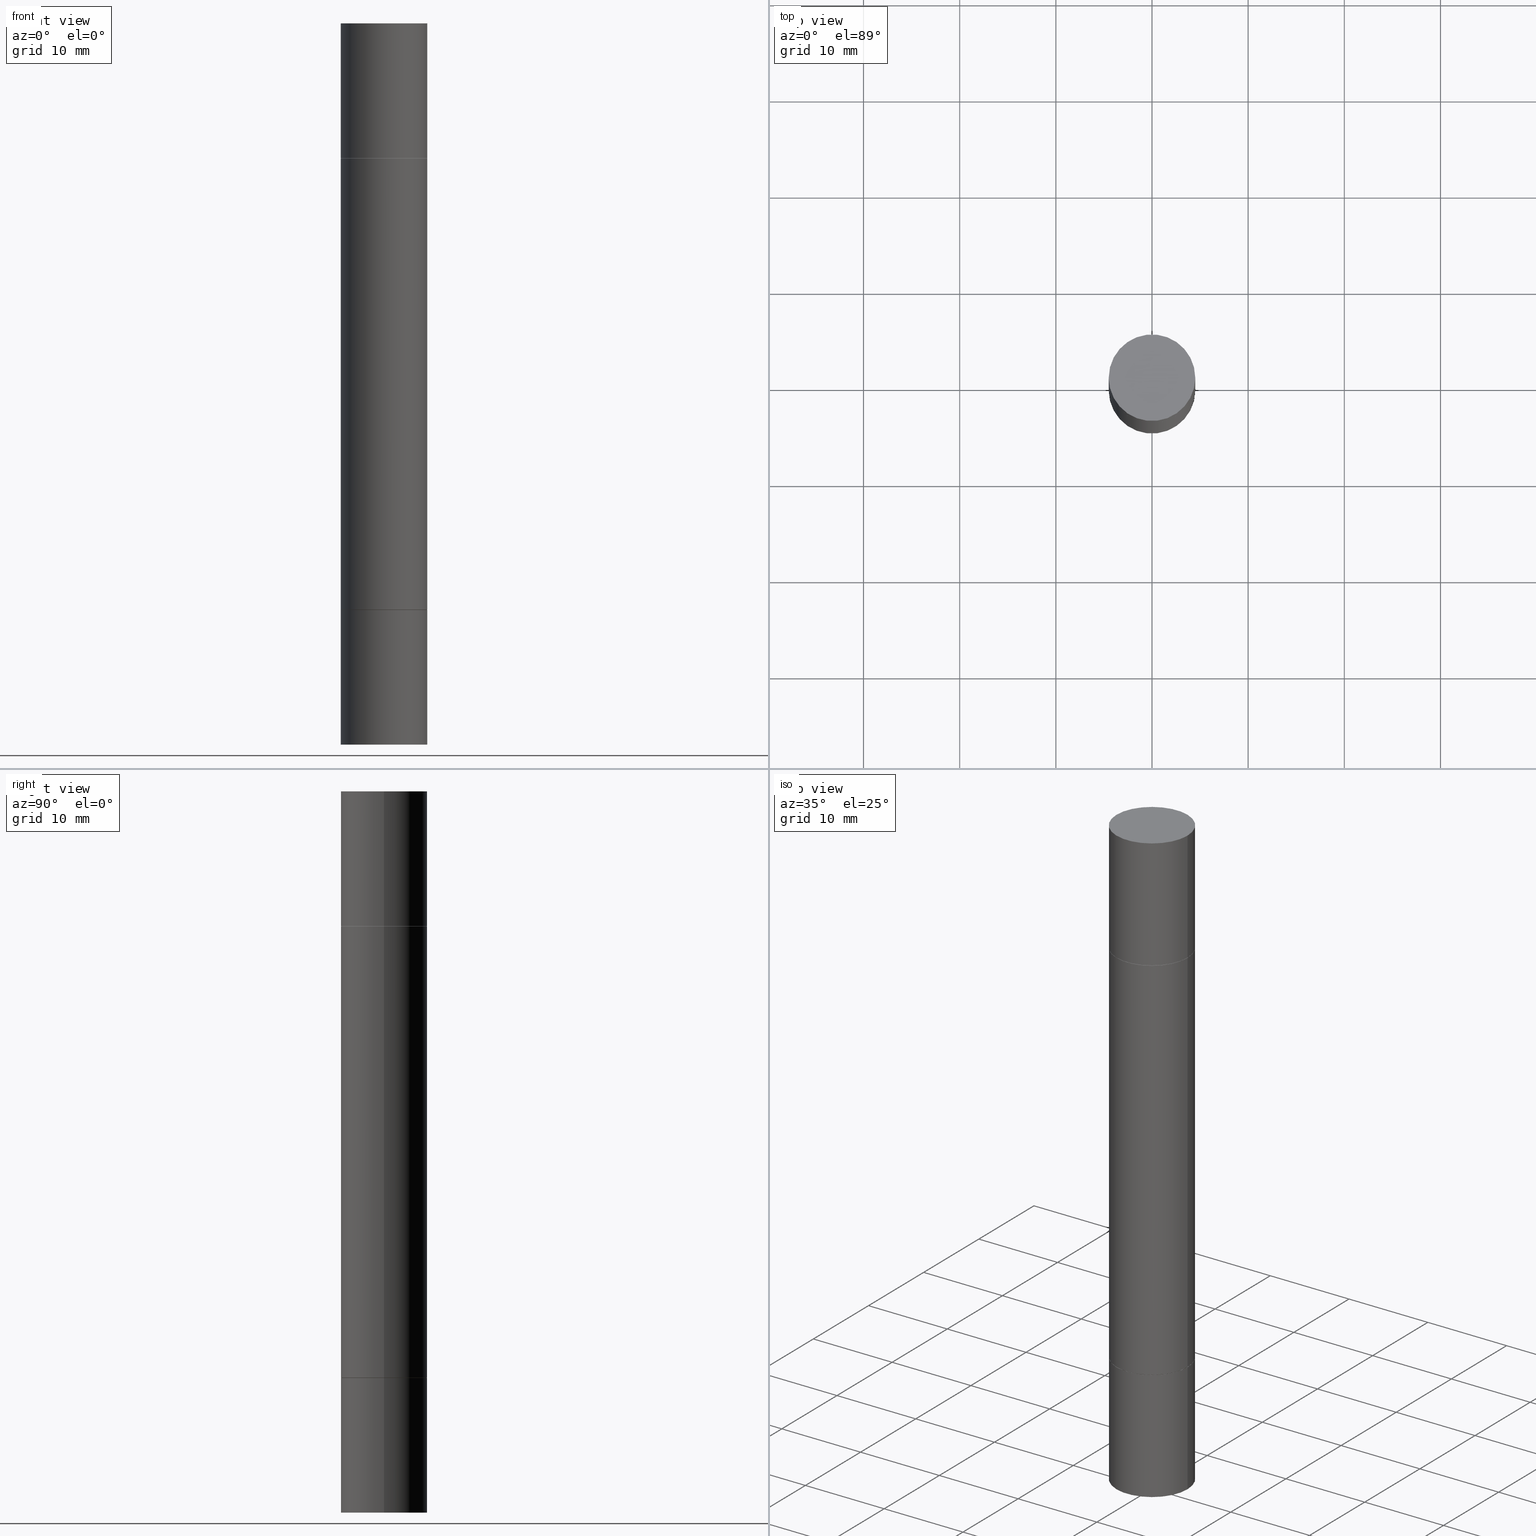
[diagram: canonical four-view strip — front | top / right | iso, engineering-drawing reading convention]
A machine part, canonical four-view strip (front | top / right | iso — engineering-drawing reading convention). The complete STEP part file that produces these views, byte-faithful:
ISO-10303-21;
HEADER;
FILE_DESCRIPTION (( 'STEP AP203' ),
    '1' );
FILE_NAME ('48917.STEP',
    '2024-03-04T15:48:31',
    ( '' ),
    ( '' ),
    'SwSTEP 2.0',
    'SolidWorks 2023',
    '' );
FILE_SCHEMA (( 'CONFIG_CONTROL_DESIGN' ));
ENDSEC;

DATA;
#1 = DIRECTION ( 'NONE',  ( 1.000000000000000000, 0.000000000000000000, 0.000000000000000000 ) ) ;
#2 = PRODUCT_DEFINITION ( 'UNKNOWN', '', #609, #599 ) ;
#3 = LINE ( 'NONE', #140, #7 ) ;
#4 = ORIENTED_EDGE ( 'NONE', *, *, #512, .F. ) ;
#5 = COORDINATED_UNIVERSAL_TIME_OFFSET ( 5, 0, .BEHIND. ) ;
#6 = CIRCLE ( 'NONE', #161, 0.1771500000000000019 ) ;
#7 = VECTOR ( 'NONE', #185, 39.37007874015748143 ) ;
#8 = CARTESIAN_POINT ( 'NONE',  ( 1.237031838352180770E-15, 0.1771499999999980590, -0.5512000000000003563 ) ) ;
#9 = EDGE_LOOP ( 'NONE', ( #348, #330, #664, #305 ) ) ;
#10 = PERSON_AND_ORGANIZATION ( #100, #189 ) ;
#11 = CARTESIAN_POINT ( 'NONE',  ( -0.1771500000000000019, -9.096389231977797770E-15, -2.952799999999998981 ) ) ;
#12 = EDGE_LOOP ( 'NONE', ( #245, #230, #581, #561 ) ) ;
#13 = CYLINDRICAL_SURFACE ( 'NONE', #530, 0.1771499999999998354 ) ;
#14 = VERTEX_POINT ( 'NONE', #23 ) ;
#15 = APPROVAL_STATUS ( 'not_yet_approved' ) ;
#16 = AXIS2_PLACEMENT_3D ( 'NONE', #539, #650, #73 ) ;
#17 = VECTOR ( 'NONE', #641, 39.37007874015748143 ) ;
#18 = DIRECTION ( 'NONE',  ( -2.445468806185136877E-29, -3.492890411551753071E-15, -1.000000000000000000 ) ) ;
#19 = VERTEX_POINT ( 'NONE', #603 ) ;
#20 = APPROVAL_DATE_TIME ( #536, #194 ) ;
#21 = LINE ( 'NONE', #657, #92 ) ;
#22 = EDGE_CURVE ( 'NONE', #220, #522, #620, .T. ) ;
#23 = CARTESIAN_POINT ( 'NONE',  ( 0.1771500000000000019, -1.154667793568816250E-14, -2.952799999999999869 ) ) ;
#24 = AXIS2_PLACEMENT_3D ( 'NONE', #397, #145, #625 ) ;
#25 = CC_DESIGN_APPROVAL ( #314, ( #2 ) ) ;
#26 = EDGE_LOOP ( 'NONE', ( #4, #266, #515, #158 ) ) ;
#27 = EDGE_CURVE ( 'NONE', #14, #55, #655, .T. ) ;
#28 = CARTESIAN_POINT ( 'NONE',  ( 0.000000000000000000, -1.031172645228302408E-14, -2.952799999999998981 ) ) ;
#29 = EDGE_CURVE ( 'NONE', #522, #220, #562, .T. ) ;
#30 = FACE_OUTER_BOUND ( 'NONE', #9, .T. ) ;
#31 = ADVANCED_FACE ( 'NONE', ( #445 ), #276, .T. ) ;
#32 = LINE ( 'NONE', #144, #251 ) ;
#33 = CARTESIAN_POINT ( 'NONE',  ( 5.870592416128037625E-29, -1.926693730311889446E-15, -0.5521999999999996911 ) ) ;
#34 = VERTEX_POINT ( 'NONE', #177 ) ;
#35 = DIRECTION ( 'NONE',  ( -2.445468806185136877E-29, -3.492890411551753071E-15, -1.000000000000000000 ) ) ;
#36 = CARTESIAN_POINT ( 'NONE',  ( 0.1761500000000000010, -3.153249715574770922E-15, -0.5511999999999992461 ) ) ;
#37 = AXIS2_PLACEMENT_3D ( 'NONE', #157, #167, #575 ) ;
#38 = VERTEX_POINT ( 'NONE', #596 ) ;
#39 = APPROVAL_PERSON_ORGANIZATION ( #246, #314, #386 ) ;
#40 = FACE_OUTER_BOUND ( 'NONE', #166, .T. ) ;
#41 = EDGE_CURVE ( 'NONE', #407, #420, #21, .T. ) ;
#42 = FACE_OUTER_BOUND ( 'NONE', #511, .T. ) ;
#43 = ORIENTED_EDGE ( 'NONE', *, *, #520, .T. ) ;
#44 = UNCERTAINTY_MEASURE_WITH_UNIT (LENGTH_MEASURE( 1.000000000000000082E-05 ), #559, 'distance_accuracy_value', 'NONE');
#45 = CARTESIAN_POINT ( 'NONE',  ( 1.237031838352180770E-15, 0.1771499999999916197, -2.401600000000000179 ) ) ;
#46 = EDGE_CURVE ( 'NONE', #370, #204, #356, .T. ) ;
#47 = CARTESIAN_POINT ( 'NONE',  ( -0.1771500000000000019, -8.088667383951849417E-15, -2.401599999999999735 ) ) ;
#48 = ORIENTED_EDGE ( 'NONE', *, *, #46, .F. ) ;
#49 = DIRECTION ( 'NONE',  ( 1.000000000000000000, -6.982962677686266711E-15, 0.000000000000000000 ) ) ;
#50 = AXIS2_PLACEMENT_3D ( 'NONE', #405, #507, #514 ) ;
#51 = ORIENTED_EDGE ( 'NONE', *, *, #512, .T. ) ;
#52 = AXIS2_PLACEMENT_3D ( 'NONE', #465, #591, #124 ) ;
#53 = DIRECTION ( 'NONE',  ( 1.000000000000000000, -6.982962677686266711E-15, 4.876176775795935793E-29 ) ) ;
#54 = DIRECTION ( 'NONE',  ( -2.445468806185136597E-29, 3.491481338843145583E-15, 1.000000000000000000 ) ) ;
#55 = VERTEX_POINT ( 'NONE', #549 ) ;
#56 = EDGE_CURVE ( 'NONE', #14, #67, #173, .T. ) ;
#57 = DIRECTION ( 'NONE',  ( -2.445468806185136877E-29, -3.492890411551753071E-15, -1.000000000000000000 ) ) ;
#58 = ORIENTED_EDGE ( 'NONE', *, *, #192, .T. ) ;
#59 = CALENDAR_DATE ( 2024, 4, 3 ) ;
#60 = FACE_OUTER_BOUND ( 'NONE', #12, .T. ) ;
#61 = ORIENTED_EDGE ( 'NONE', *, *, #232, .T. ) ;
#62 = CLOSED_SHELL ( 'NONE', ( #262, #418, #239, #218, #556, #466 ) ) ;
#63 = PERSON_AND_ORGANIZATION ( #100, #189 ) ;
#64 = AXIS2_PLACEMENT_3D ( 'NONE', #666, #186, #244 ) ;
#65 = ADVANCED_FACE ( 'NONE', ( #181 ), #493, .T. ) ;
#66 = CARTESIAN_POINT ( 'NONE',  ( 5.873037884934223228E-29, -1.923200839900336120E-15, -0.5511999999999995792 ) ) ;
#67 = VERTEX_POINT ( 'NONE', #340 ) ;
#68 = EDGE_CURVE ( 'NONE', #19, #70, #543, .T. ) ;
#69 = CARTESIAN_POINT ( 'NONE',  ( 5.873037884934223228E-29, -1.923200839900334937E-15, -0.5511999999999992461 ) ) ;
#70 = VERTEX_POINT ( 'NONE', #341 ) ;
#71 = APPROVAL_DATE_TIME ( #648, #169 ) ;
#72 = DIRECTION ( 'NONE',  ( 2.445468806185136597E-29, 3.492890411551752677E-15, 1.000000000000000000 ) ) ;
#73 = DIRECTION ( 'NONE',  ( 1.000000000000000000, -6.982962677686266711E-15, 0.000000000000000000 ) ) ;
#74 = CLOSED_SHELL ( 'NONE', ( #65, #367, #643, #608 ) ) ;
#75 = VECTOR ( 'NONE', #57, 39.37007874015748143 ) ;
#76 = DIRECTION ( 'NONE',  ( 2.445468806185136597E-29, 3.492890411551752677E-15, 1.000000000000000000 ) ) ;
#77 = ADVANCED_FACE ( 'NONE', ( #30 ), #78, .T. ) ;
#78 = CYLINDRICAL_SURFACE ( 'NONE', #440, 0.1771500000000000019 ) ;
#79 = CARTESIAN_POINT ( 'NONE',  ( 0.000000000000000000, 0.000000000000000000, 0.000000000000000000 ) ) ;
#80 = DIRECTION ( 'NONE',  ( -1.000000000000000000, 6.982962677686265922E-15, -9.839502134516470631E-33 ) ) ;
#81 = EDGE_CURVE ( 'NONE', #70, #116, #644, .T. ) ;
#82 = EDGE_CURVE ( 'NONE', #626, #522, #439, .T. ) ;
#83 = AXIS2_PLACEMENT_3D ( 'NONE', #480, #419, #160 ) ;
#84 = ADVANCED_FACE ( 'NONE', ( #284 ), #495, .T. ) ;
#85 = CARTESIAN_POINT ( 'NONE',  ( 5.870592416128037625E-29, -8.381650102026854256E-15, -2.400599999999999401 ) ) ;
#86 = CARTESIAN_POINT ( 'NONE',  ( -0.1761500000000000010, -7.130403137997704067E-16, -0.5511999999999992461 ) ) ;
#87 = DIRECTION ( 'NONE',  ( 1.000000000000000000, -6.982962677686266711E-15, 0.000000000000000000 ) ) ;
#88 = ORIENTED_EDGE ( 'NONE', *, *, #142, .F. ) ;
#89 = DIRECTION ( 'NONE',  ( 2.445468806185136597E-29, 3.492890411551752677E-15, 1.000000000000000000 ) ) ;
#90 = CARTESIAN_POINT ( 'NONE',  ( 0.000000000000000000, -1.031172645228302408E-14, -2.952799999999998981 ) ) ;
#91 = ORIENTED_EDGE ( 'NONE', *, *, #582, .T. ) ;
#92 = VECTOR ( 'NONE', #488, 39.37007874015748143 ) ;
#93 = FACE_OUTER_BOUND ( 'NONE', #455, .T. ) ;
#94 = AXIS2_PLACEMENT_3D ( 'NONE', #176, #72, #384 ) ;
#95 = ORIENTED_EDGE ( 'NONE', *, *, #282, .T. ) ;
#96 = LOCAL_TIME ( 10, 48, 31.00000000000000000, #328 ) ;
#97 = EDGE_CURVE ( 'NONE', #483, #672, #454, .T. ) ;
#98 = APPLICATION_PROTOCOL_DEFINITION ( 'international standard', 'config_control_design', 1994, #268 ) ;
#99 = DIRECTION ( 'NONE',  ( 0.000000000000000000, 1.000000000000000000, -3.492185875197449524E-15 ) ) ;
#100 = PERSON ( 'UNSPECIFIED', 'UNSPECIFIED', 'UNSPECIFIED', ('UNSPECIFIED'), ('UNSPECIFIED'), ('UNSPECIFIED') ) ;
#101 = EDGE_LOOP ( 'NONE', ( #430, #417, #248, #376 ) ) ;
#102 = DIRECTION ( 'NONE',  ( 0.7071067811864267805, -7.407546758113824138E-15, -0.7071067811866682540 ) ) ;
#103 = MANIFOLD_SOLID_BREP ( 'Mirror1[4]', #333 ) ;
#104 = LINE ( 'NONE', #447, #494 ) ;
#105 = ORIENTED_EDGE ( 'NONE', *, *, #29, .F. ) ;
#106 = FACE_OUTER_BOUND ( 'NONE', #288, .T. ) ;
#107 = LINE ( 'NONE', #11, #75 ) ;
#108 = AXIS2_PLACEMENT_3D ( 'NONE', #90, #457, #606 ) ;
#109 = ORIENTED_EDGE ( 'NONE', *, *, #660, .T. ) ;
#110 = CONICAL_SURFACE ( 'NONE', #241, 0.1761500000000000010, 0.7853981633972775267 ) ;
#111 = DIRECTION ( 'NONE',  ( 1.000000000000000000, -6.982962677686267499E-15, 0.000000000000000000 ) ) ;
#112 = ORIENTED_EDGE ( 'NONE', *, *, #555, .F. ) ;
#113 = DATE_AND_TIME ( #587, #400 ) ;
#114 = CARTESIAN_POINT ( 'NONE',  ( 0.1771500000000000019, -9.618681940378976650E-15, -2.400599999999999401 ) ) ;
#115 = EDGE_CURVE ( 'NONE', #322, #672, #398, .T. ) ;
#116 = VERTEX_POINT ( 'NONE', #350 ) ;
#117 = SECURITY_CLASSIFICATION_LEVEL ( 'unclassified' ) ;
#118 = DIRECTION ( 'NONE',  ( 1.000000000000000000, -6.982962677686266711E-15, 0.000000000000000000 ) ) ;
#119 = EDGE_LOOP ( 'NONE', ( #105, #51, #243, #207 ) ) ;
#120 = CIRCLE ( 'NONE', #578, 0.1771500000000000019 ) ;
#121 = PERSON_AND_ORGANIZATION ( #100, #189 ) ;
#122 = CIRCLE ( 'NONE', #422, 0.1761500000000000010 ) ;
#123 = LOCAL_TIME ( 10, 48, 31.00000000000000000, #324 ) ;
#124 = DIRECTION ( 'NONE',  ( 1.000000000000000000, -6.982962677686265922E-15, 9.839502134516470631E-33 ) ) ;
#125 = VERTEX_POINT ( 'NONE', #47 ) ;
#126 = DIRECTION ( 'NONE',  ( 1.000000000000000000, -6.982962677686266711E-15, 0.000000000000000000 ) ) ;
#127 = CARTESIAN_POINT ( 'NONE',  ( 0.1771500000000000019, -1.237031838352122197E-15, 8.638147158322499960E-30 ) ) ;
#128 = CALENDAR_DATE ( 2024, 4, 3 ) ;
#129 = DIRECTION ( 'NONE',  ( -2.445468806185136597E-29, 3.491481338843145583E-15, 1.000000000000000000 ) ) ;
#130 = ADVANCED_FACE ( 'NONE', ( #413 ), #668, .T. ) ;
#131 = DIRECTION ( 'NONE',  ( -2.445468806185136597E-29, -3.492890411551752677E-15, -1.000000000000000000 ) ) ;
#132 = AXIS2_PLACEMENT_3D ( 'NONE', #229, #602, #134 ) ;
#133 = VECTOR ( 'NONE', #500, 39.37007874015748143 ) ;
#134 = DIRECTION ( 'NONE',  ( 1.000000000000000000, -6.982962677686272233E-15, 0.000000000000000000 ) ) ;
#135 = CARTESIAN_POINT ( 'NONE',  ( 5.873037884934223228E-29, -1.923200839900336120E-15, -0.5511999999999995792 ) ) ;
#136 = DIRECTION ( 'NONE',  ( -2.445468806185136877E-29, -3.492890411551753071E-15, -1.000000000000000000 ) ) ;
#137 = DIRECTION ( 'NONE',  ( 1.000000000000000000, -6.982962677686272233E-15, 0.000000000000000000 ) ) ;
#138 = CIRCLE ( 'NONE', #64, 0.1771500000000000019 ) ;
#139 = DIRECTION ( 'NONE',  ( -2.445468806185136877E-29, -3.492890411551753071E-15, -1.000000000000000000 ) ) ;
#140 = CARTESIAN_POINT ( 'NONE',  ( 0.1761500000000000010, -3.153249715574770922E-15, -0.5511999999999992461 ) ) ;
#141 = CYLINDRICAL_SURFACE ( 'NONE', #563, 0.1771499999999998354 ) ;
#142 = EDGE_CURVE ( 'NONE', #672, #322, #6, .T. ) ;
#143 = VERTEX_POINT ( 'NONE', #294 ) ;
#144 = CARTESIAN_POINT ( 'NONE',  ( -0.1771499999999998354, -9.096389231977799348E-15, -2.952799999999998981 ) ) ;
#145 = DIRECTION ( 'NONE',  ( -2.445468806185136597E-29, -3.492890411551752677E-15, -1.000000000000000000 ) ) ;
#146 = CC_DESIGN_PERSON_AND_ORGANIZATION_ASSIGNMENT ( #121, #221, ( #609 ) ) ;
#147 = EDGE_LOOP ( 'NONE', ( #43, #61 ) ) ;
#148 = CIRCLE ( 'NONE', #550, 0.1771500000000000019 ) ;
#149 = DIRECTION ( 'NONE',  ( 2.445468806185136597E-29, 3.492890411551752677E-15, 1.000000000000000000 ) ) ;
#150 = ORIENTED_EDGE ( 'NONE', *, *, #41, .F. ) ;
#151 = CARTESIAN_POINT ( 'NONE',  ( 5.873037884934223228E-29, -8.385141583365697263E-15, -2.401599999999999735 ) ) ;
#152 = DIRECTION ( 'NONE',  ( 2.445468806185136597E-29, 3.492890411551752677E-15, 1.000000000000000000 ) ) ;
#153 = EDGE_CURVE ( 'NONE', #220, #354, #460, .T. ) ;
#154 = EDGE_LOOP ( 'NONE', ( #499, #199, #109, #629 ) ) ;
#155 = CARTESIAN_POINT ( 'NONE',  ( -0.1761500000000000010, -7.128222099976058179E-15, -2.401599999999999735 ) ) ;
#156 = ADVANCED_FACE ( 'NONE', ( #571 ), #634, .T. ) ;
#157 = CARTESIAN_POINT ( 'NONE',  ( 1.237031838352194377E-15, 0.1771499999999897046, -2.952800000000000313 ) ) ;
#158 = ORIENTED_EDGE ( 'NONE', *, *, #619, .F. ) ;
#159 = DIRECTION ( 'NONE',  ( 1.000000000000000000, -6.982962677686267499E-15, 0.000000000000000000 ) ) ;
#160 = DIRECTION ( 'NONE',  ( -1.000000000000000000, 6.982962677686265922E-15, -9.839502134516470631E-33 ) ) ;
#161 = AXIS2_PLACEMENT_3D ( 'NONE', #33, #615, #49 ) ;
#162 = ORIENTED_EDGE ( 'NONE', *, *, #232, .F. ) ;
#163 = CONICAL_SURFACE ( 'NONE', #380, 0.1761500000000000010, 0.7853981633972775267 ) ;
#164 = CARTESIAN_POINT ( 'NONE',  ( -0.1761500000000000010, -7.130403137997704067E-16, -0.5511999999999992461 ) ) ;
#165 = DIRECTION ( 'NONE',  ( 2.438088387897959769E-29, 3.492890411551753071E-15, 1.000000000000000000 ) ) ;
#166 = EDGE_LOOP ( 'NONE', ( #270, #535, #364, #474 ) ) ;
#167 = DIRECTION ( 'NONE',  ( 2.438088387897960049E-29, -3.491481338843145188E-15, -1.000000000000000000 ) ) ;
#168 = EDGE_LOOP ( 'NONE', ( #461, #506, #58, #621 ) ) ;
#169 = APPROVAL ( #15, 'UNSPECIFIED' ) ;
#170 = APPROVAL_DATE_TIME ( #113, #314 ) ;
#171 = DIRECTION ( 'NONE',  ( 1.000000000000000000, -6.982962677686268288E-15, 0.000000000000000000 ) ) ;
#172 = ORIENTED_EDGE ( 'NONE', *, *, #27, .F. ) ;
#173 = CIRCLE ( 'NONE', #132, 0.1771500000000000019 ) ;
#174 = PERSON_AND_ORGANIZATION ( #100, #189 ) ;
#175 = CIRCLE ( 'NONE', #496, 0.1761500000000000010 ) ;
#176 = CARTESIAN_POINT ( 'NONE',  ( 5.873037884934223228E-29, -1.923200839900336120E-15, -0.5511999999999995792 ) ) ;
#177 = CARTESIAN_POINT ( 'NONE',  ( 0.1761500000000000010, -3.153249715574770922E-15, -0.5511999999999992461 ) ) ;
#178 = EDGE_CURVE ( 'NONE', #420, #38, #120, .T. ) ;
#179 = CARTESIAN_POINT ( 'NONE',  ( 7.220980290903470182E-29, 2.080354946989631982E-18, 5.463695987328526437E-16 ) ) ;
#180 = DIRECTION ( 'NONE',  ( 1.000000000000000000, -6.982962677686272233E-15, 0.000000000000000000 ) ) ;
#181 = FACE_OUTER_BOUND ( 'NONE', #361, .T. ) ;
#182 = AXIS2_PLACEMENT_3D ( 'NONE', #8, #165, #375 ) ;
#183 = DIRECTION ( 'NONE',  ( 1.000000000000000000, -6.982962677686266711E-15, 0.000000000000000000 ) ) ;
#184 = DIRECTION ( 'NONE',  ( -2.445468806185136877E-29, 3.491481338843145188E-15, 1.000000000000000000 ) ) ;
#185 = DIRECTION ( 'NONE',  ( 0.7071067811864267805, -7.407546758113824138E-15, -0.7071067811866682540 ) ) ;
#186 = DIRECTION ( 'NONE',  ( 2.445468806185136597E-29, 3.492890411551752677E-15, 1.000000000000000000 ) ) ;
#187 = CARTESIAN_POINT ( 'NONE',  ( 7.220980290903470182E-29, 2.080354946989631982E-18, 5.463695987328526437E-16 ) ) ;
#188 = CIRCLE ( 'NONE', #214, 0.1771500000000000019 ) ;
#189 = ORGANIZATION ( 'UNSPECIFIED', 'UNSPECIFIED', '' ) ;
#190 = DIRECTION ( 'NONE',  ( 2.438088387897959769E-29, 3.492890411551753071E-15, 1.000000000000000000 ) ) ;
#191 = VERTEX_POINT ( 'NONE', #36 ) ;
#192 = EDGE_CURVE ( 'NONE', #404, #116, #104, .T. ) ;
#193 = DIRECTION ( 'NONE',  ( 1.000000000000000000, -6.982962677686267499E-15, 0.000000000000000000 ) ) ;
#194 = APPROVAL ( #434, 'UNSPECIFIED' ) ;
#195 = CARTESIAN_POINT ( 'NONE',  ( -0.1761500000000000010, -7.147241175928796487E-16, -0.5511999999999992461 ) ) ;
#196 = ORIENTED_EDGE ( 'NONE', *, *, #68, .T. ) ;
#197 =( NAMED_UNIT ( * ) SI_UNIT ( $, .STERADIAN. ) SOLID_ANGLE_UNIT ( ) );
#198 = FACE_OUTER_BOUND ( 'NONE', #385, .T. ) ;
#199 = ORIENTED_EDGE ( 'NONE', *, *, #501, .F. ) ;
#200 = CARTESIAN_POINT ( 'NONE',  ( 3.610490145451734531E-29, -5.154823048668018475E-15, -1.476399999999999491 ) ) ;
#201 = CIRCLE ( 'NONE', #588, 0.1771500000000000019 ) ;
#202 = CONICAL_SURFACE ( 'NONE', #323, 0.1761500000000000010, 0.7853981633972775267 ) ;
#203 = DIRECTION ( 'NONE',  ( 1.000000000000000000, -6.982962677686266711E-15, 0.000000000000000000 ) ) ;
#204 = VERTEX_POINT ( 'NONE', #567 ) ;
#205 = CARTESIAN_POINT ( 'NONE',  ( 5.873037884934223228E-29, -8.385141583365697263E-15, -2.401599999999999735 ) ) ;
#206 = FACE_OUTER_BOUND ( 'NONE', #568, .T. ) ;
#207 = ORIENTED_EDGE ( 'NONE', *, *, #153, .F. ) ;
#208 = CARTESIAN_POINT ( 'NONE',  ( -0.1771500000000000019, -7.113565100066610661E-16, -0.5521999999999996911 ) ) ;
#209 = DIRECTION ( 'NONE',  ( -2.445468806185136597E-29, -3.492890411551752677E-15, -1.000000000000000000 ) ) ;
#210 = ORIENTED_EDGE ( 'NONE', *, *, #115, .F. ) ;
#211 =( LENGTH_UNIT ( ) NAMED_UNIT ( * ) SI_UNIT ( $, .METRE. ) );
#212 = CARTESIAN_POINT ( 'NONE',  ( 5.873037884934223228E-29, -1.923200839900334937E-15, -0.5511999999999992461 ) ) ;
#213 = ORIENTED_EDGE ( 'NONE', *, *, #272, .T. ) ;
#214 = AXIS2_PLACEMENT_3D ( 'NONE', #187, #554, #658 ) ;
#215 = EDGE_CURVE ( 'NONE', #125, #55, #201, .T. ) ;
#216 = DATE_AND_TIME ( #484, #279 ) ;
#217 = ADVANCED_FACE ( 'NONE', ( #93 ), #299, .F. ) ;
#218 = ADVANCED_FACE ( 'NONE', ( #42 ), #557, .F. ) ;
#219 = LINE ( 'NONE', #580, #663 ) ;
#220 = VERTEX_POINT ( 'NONE', #242 ) ;
#221 = PERSON_AND_ORGANIZATION_ROLE ( 'creator' ) ;
#222 = DIRECTION ( 'NONE',  ( 1.000000000000000000, -6.982962677686268288E-15, 0.000000000000000000 ) ) ;
#223 = EDGE_LOOP ( 'NONE', ( #414, #91, #254, #640 ) ) ;
#224 = DATE_TIME_ROLE ( 'creation_date' ) ;
#225 = DIRECTION ( 'NONE',  ( 0.7071067811864267805, -2.468850131080992517E-15, 0.7071067811866682540 ) ) ;
#226 = EDGE_LOOP ( 'NONE', ( #327, #669 ) ) ;
#227 = CARTESIAN_POINT ( 'NONE',  ( 7.220980290903470182E-29, -1.030964609733603853E-14, -2.952799999999999869 ) ) ;
#228 = EDGE_LOOP ( 'NONE', ( #478, #196, #572, #233 ) ) ;
#229 = CARTESIAN_POINT ( 'NONE',  ( 7.220980290903470182E-29, -1.030964609733603853E-14, -2.952799999999999869 ) ) ;
#230 = ORIENTED_EDGE ( 'NONE', *, *, #82, .T. ) ;
#231 =( GEOMETRIC_REPRESENTATION_CONTEXT ( 3 ) GLOBAL_UNCERTAINTY_ASSIGNED_CONTEXT ( ( #44 ) ) GLOBAL_UNIT_ASSIGNED_CONTEXT ( ( #559, #627, #197 ) ) REPRESENTATION_CONTEXT ( 'NONE', 'WORKASPACE' ) );
#232 = EDGE_CURVE ( 'NONE', #616, #407, #138, .T. ) ;
#233 = ORIENTED_EDGE ( 'NONE', *, *, #192, .F. ) ;
#234 = CARTESIAN_POINT ( 'NONE',  ( -0.1771500000000000019, 1.258726456399017493E-15, -8.713893512386565325E-30 ) ) ;
#235 = EDGE_LOOP ( 'NONE', ( #313, #95 ) ) ;
#236 = DIRECTION ( 'NONE',  ( 2.438088387897959769E-29, 3.492890411551753071E-15, 1.000000000000000000 ) ) ;
#237 = CARTESIAN_POINT ( 'NONE',  ( 0.000000000000000000, 0.000000000000000000, -1.476399999999999491 ) ) ;
#238 = ORIENTED_EDGE ( 'NONE', *, *, #501, .T. ) ;
#239 = ADVANCED_FACE ( 'NONE', ( #198 ), #290, .F. ) ;
#240 = CARTESIAN_POINT ( 'NONE',  ( 1.237031838352194377E-15, 0.1771500000000000019, 0.000000000000000000 ) ) ;
#241 = AXIS2_PLACEMENT_3D ( 'NONE', #69, #349, #646 ) ;
#242 = CARTESIAN_POINT ( 'NONE',  ( 0.1771500000000000019, -3.163725568664010262E-15, -0.5521999999999996911 ) ) ;
#243 = ORIENTED_EDGE ( 'NONE', *, *, #485, .F. ) ;
#244 = DIRECTION ( 'NONE',  ( 1.000000000000000000, -6.982962677686266711E-15, 0.000000000000000000 ) ) ;
#245 = ORIENTED_EDGE ( 'NONE', *, *, #546, .F. ) ;
#246 = PERSON_AND_ORGANIZATION ( #100, #189 ) ;
#247 = CARTESIAN_POINT ( 'NONE',  ( 1.237031838352194377E-15, 0.1771500000000000019, 0.000000000000000000 ) ) ;
#248 = ORIENTED_EDGE ( 'NONE', *, *, #142, .T. ) ;
#249 = DIRECTION ( 'NONE',  ( -2.445468806185136597E-29, 3.491481338843145583E-15, 1.000000000000000000 ) ) ;
#250 = CLOSED_SHELL ( 'NONE', ( #31, #538, #429, #130 ) ) ;
#251 = VECTOR ( 'NONE', #18, 39.37007874015748143 ) ;
#252 = FACE_OUTER_BOUND ( 'NONE', #676, .T. ) ;
#253 = AXIS2_PLACEMENT_3D ( 'NONE', #205, #303, #573 ) ;
#254 = ORIENTED_EDGE ( 'NONE', *, *, #27, .T. ) ;
#255 = FACE_OUTER_BOUND ( 'NONE', #481, .T. ) ;
#256 = CARTESIAN_POINT ( 'NONE',  ( 5.873037884934223228E-29, -8.385141583365697263E-15, -2.401599999999999735 ) ) ;
#257 = ORIENTED_EDGE ( 'NONE', *, *, #468, .F. ) ;
#258 = ADVANCED_FACE ( 'NONE', ( #301 ), #450, .T. ) ;
#259 = DIRECTION ( 'NONE',  ( 1.000000000000000000, -6.982962677686266711E-15, 0.000000000000000000 ) ) ;
#260 = ORIENTED_EDGE ( 'NONE', *, *, #558, .F. ) ;
#261 = APPROVAL_STATUS ( 'not_yet_approved' ) ;
#262 = ADVANCED_FACE ( 'NONE', ( #612 ), #141, .T. ) ;
#263 = FACE_OUTER_BOUND ( 'NONE', #226, .T. ) ;
#264 = VECTOR ( 'NONE', #505, 39.37007874015748143 ) ;
#265 = VECTOR ( 'NONE', #136, 39.37007874015748143 ) ;
#266 = ORIENTED_EDGE ( 'NONE', *, *, #22, .F. ) ;
#267 = CIRCLE ( 'NONE', #442, 0.1771500000000000019 ) ;
#268 = APPLICATION_CONTEXT ( 'configuration controlled 3d designs of mechanical parts and assemblies' ) ;
#269 = CYLINDRICAL_SURFACE ( 'NONE', #673, 0.1771499999999998354 ) ;
#270 = ORIENTED_EDGE ( 'NONE', *, *, #97, .F. ) ;
#271 = PERSON_AND_ORGANIZATION ( #100, #189 ) ;
#272 = EDGE_CURVE ( 'NONE', #616, #38, #107, .T. ) ;
#273 = CARTESIAN_POINT ( 'NONE',  ( 0.1761500000000000010, -9.615190459040133643E-15, -2.401599999999999735 ) ) ;
#274 = ORIENTED_EDGE ( 'NONE', *, *, #513, .T. ) ;
#275 = DIRECTION ( 'NONE',  ( -2.445468806185136597E-29, -3.492890411551752677E-15, -1.000000000000000000 ) ) ;
#276 = CYLINDRICAL_SURFACE ( 'NONE', #342, 0.1771500000000000019 ) ;
#277 = AXIS2_PLACEMENT_3D ( 'NONE', #347, #360, #659 ) ;
#278 = AXIS2_PLACEMENT_3D ( 'NONE', #540, #275, #486 ) ;
#279 = LOCAL_TIME ( 10, 48, 31.00000000000000000, #479 ) ;
#280 = CARTESIAN_POINT ( 'NONE',  ( 5.870592416128037625E-29, -1.926693730311889446E-15, -0.5521999999999996911 ) ) ;
#281 = DIRECTION ( 'NONE',  ( -2.445468806185136597E-29, -3.492890411551752677E-15, -1.000000000000000000 ) ) ;
#282 = EDGE_CURVE ( 'NONE', #483, #191, #122, .T. ) ;
#283 = ADVANCED_FACE ( 'NONE', ( #252 ), #269, .T. ) ;
#284 = FACE_OUTER_BOUND ( 'NONE', #526, .T. ) ;
#285 = VECTOR ( 'NONE', #671, 39.37007874015748143 ) ;
#286 = AXIS2_PLACEMENT_3D ( 'NONE', #247, #190, #401 ) ;
#287 = DIRECTION ( 'NONE',  ( 1.000000000000000000, -6.982962677686267499E-15, 0.000000000000000000 ) ) ;
#288 = EDGE_LOOP ( 'NONE', ( #592, #427 ) ) ;
#289 = LINE ( 'NONE', #234, #133 ) ;
#290 = PLANE ( 'NONE',  #410 ) ;
#291 = EDGE_CURVE ( 'NONE', #672, #204, #428, .T. ) ;
#292 = ORIENTED_EDGE ( 'NONE', *, *, #528, .T. ) ;
#293 = DIRECTION ( 'NONE',  ( 2.445468806185136597E-29, 3.492890411551752677E-15, 1.000000000000000000 ) ) ;
#294 = CARTESIAN_POINT ( 'NONE',  ( 0.1761500000000000010, -9.615190459040133643E-15, -2.401599999999999735 ) ) ;
#295 = ORIENTED_EDGE ( 'NONE', *, *, #468, .T. ) ;
#296 = FACE_OUTER_BOUND ( 'NONE', #632, .T. ) ;
#297 = AXIS2_PLACEMENT_3D ( 'NONE', #510, #502, #403 ) ;
#298 = CIRCLE ( 'NONE', #368, 0.1771500000000000019 ) ;
#299 = PLANE ( 'NONE',  #50 ) ;
#300 = PERSON_AND_ORGANIZATION_ROLE ( 'design_owner' ) ;
#301 = FACE_OUTER_BOUND ( 'NONE', #147, .T. ) ;
#302 = ORIENTED_EDGE ( 'NONE', *, *, #56, .F. ) ;
#303 = DIRECTION ( 'NONE',  ( -2.445468806185136597E-29, 3.491481338843145583E-15, 1.000000000000000000 ) ) ;
#304 = CARTESIAN_POINT ( 'NONE',  ( 5.873037884934223228E-29, -1.923200839900336120E-15, -0.5511999999999995792 ) ) ;
#305 = ORIENTED_EDGE ( 'NONE', *, *, #178, .T. ) ;
#306 = AXIS2_PLACEMENT_3D ( 'NONE', #329, #129, #287 ) ;
#307 = FACE_OUTER_BOUND ( 'NONE', #586, .T. ) ;
#308 = CONICAL_SURFACE ( 'NONE', #443, 0.1761500000000000010, 0.7853981633972775267 ) ;
#309 = ORIENTED_EDGE ( 'NONE', *, *, #291, .F. ) ;
#310 = CARTESIAN_POINT ( 'NONE',  ( 5.873037884934223228E-29, -1.923200839900334937E-15, -0.5511999999999992461 ) ) ;
#311 = PLANE ( 'NONE',  #182 ) ;
#312 = EDGE_CURVE ( 'NONE', #404, #19, #267, .T. ) ;
#313 = ORIENTED_EDGE ( 'NONE', *, *, #438, .T. ) ;
#314 = APPROVAL ( #261, 'UNSPECIFIED' ) ;
#315 = APPROVAL_ROLE ( '' ) ;
#316 = CARTESIAN_POINT ( 'NONE',  ( 0.1771500000000000019, -1.234951483405132701E-15, 5.463695987328526437E-16 ) ) ;
#317 = ORIENTED_EDGE ( 'NONE', *, *, #569, .T. ) ;
#318 = CARTESIAN_POINT ( 'NONE',  ( 5.873037884934223228E-29, -1.923200839900334937E-15, -0.5511999999999992461 ) ) ;
#319 = AXIS2_PLACEMENT_3D ( 'NONE', #85, #337, #183 ) ;
#320 = CIRCLE ( 'NONE', #94, 0.1771500000000000019 ) ;
#321 = MANIFOLD_SOLID_BREP ( 'Mirror1[3]', #250 ) ;
#322 = VERTEX_POINT ( 'NONE', #416 ) ;
#323 = AXIS2_PLACEMENT_3D ( 'NONE', #462, #577, #469 ) ;
#324 = COORDINATED_UNIVERSAL_TIME_OFFSET ( 5, 0, .BEHIND. ) ;
#325 = EDGE_CURVE ( 'NONE', #637, #204, #219, .T. ) ;
#326 = CARTESIAN_POINT ( 'NONE',  ( 0.000000000000000000, -1.031172645228302408E-14, -2.952799999999998981 ) ) ;
#327 = ORIENTED_EDGE ( 'NONE', *, *, #437, .F. ) ;
#328 = COORDINATED_UNIVERSAL_TIME_OFFSET ( 5, 0, .BEHIND. ) ;
#329 = CARTESIAN_POINT ( 'NONE',  ( 5.873037884934223228E-29, -8.385141583365697263E-15, -2.401599999999999735 ) ) ;
#330 = ORIENTED_EDGE ( 'NONE', *, *, #520, .F. ) ;
#331 = LINE ( 'NONE', #273, #600 ) ;
#332 = ORIENTED_EDGE ( 'NONE', *, *, #291, .T. ) ;
#333 = CLOSED_SHELL ( 'NONE', ( #574, #258, #377, #77 ) ) ;
#334 = CIRCLE ( 'NONE', #590, 0.1771499999999998354 ) ;
#335 = MANIFOLD_SOLID_BREP ( 'Mirror1[1]', #62 ) ;
#336 = ADVANCED_FACE ( 'NONE', ( #426 ), #423, .F. ) ;
#337 = DIRECTION ( 'NONE',  ( -2.445468806185136597E-29, 3.491481338843145583E-15, 1.000000000000000000 ) ) ;
#338 = CC_DESIGN_DATE_AND_TIME_ASSIGNMENT ( #216, #425, ( #345 ) ) ;
#339 = MANIFOLD_SOLID_BREP ( 'Body-Move/Copy2[1]', #74 ) ;
#340 = CARTESIAN_POINT ( 'NONE',  ( -0.1771500000000000019, -8.088667383951849417E-15, -2.952799999999999869 ) ) ;
#341 = CARTESIAN_POINT ( 'NONE',  ( -0.1771500000000000019, 2.547769778285537851E-16, -0.5511999999999995792 ) ) ;
#342 = AXIS2_PLACEMENT_3D ( 'NONE', #390, #131, #601 ) ;
#343 = CIRCLE ( 'NONE', #392, 0.1771500000000000019 ) ;
#344 = FACE_OUTER_BOUND ( 'NONE', #223, .T. ) ;
#345 = SECURITY_CLASSIFICATION ( '', '', #117 ) ;
#346 = PRODUCT_RELATED_PRODUCT_CATEGORY ( 'detail', '', ( #358 ) ) ;
#347 = CARTESIAN_POINT ( 'NONE',  ( 5.873037884934223228E-29, -1.923200839900334937E-15, -0.5511999999999992461 ) ) ;
#348 = ORIENTED_EDGE ( 'NONE', *, *, #272, .F. ) ;
#349 = DIRECTION ( 'NONE',  ( -2.445468806185136597E-29, -3.492890411551752677E-15, -1.000000000000000000 ) ) ;
#350 = CARTESIAN_POINT ( 'NONE',  ( 0.1771500000000000019, -3.160232678252458120E-15, -0.5511999999999995792 ) ) ;
#351 = EDGE_LOOP ( 'NONE', ( #162, #213, #317, #150 ) ) ;
#352 = DIRECTION ( 'NONE',  ( 2.445468806185136597E-29, 3.492890411551752677E-15, 1.000000000000000000 ) ) ;
#353 = DIRECTION ( 'NONE',  ( 1.000000000000000000, -6.982962677686266711E-15, 0.000000000000000000 ) ) ;
#354 = VERTEX_POINT ( 'NONE', #639 ) ;
#355 = DIRECTION ( 'NONE',  ( 1.000000000000000000, -6.982962677686266711E-15, 0.000000000000000000 ) ) ;
#356 = CIRCLE ( 'NONE', #319, 0.1771500000000000019 ) ;
#357 = AXIS2_PLACEMENT_3D ( 'NONE', #318, #521, #532 ) ;
#358 = PRODUCT ( '48917', '48917', '', ( #633 ) ) ;
#359 = CIRCLE ( 'NONE', #487, 0.1761500000000000010 ) ;
#360 = DIRECTION ( 'NONE',  ( -2.438088387897959769E-29, -3.492890411551753071E-15, -1.000000000000000000 ) ) ;
#361 = EDGE_LOOP ( 'NONE', ( #642, #292, #503, #172 ) ) ;
#362 = CARTESIAN_POINT ( 'NONE',  ( -0.1771500000000000019, 2.547769778285537851E-16, 5.463695987328559963E-16 ) ) ;
#363 = CARTESIAN_POINT ( 'NONE',  ( 0.1771499999999998354, -1.154875829063514490E-14, -2.952799999999998981 ) ) ;
#364 = ORIENTED_EDGE ( 'NONE', *, *, #448, .T. ) ;
#365 = DIRECTION ( 'NONE',  ( 2.445468806185136597E-29, 3.492890411551752677E-15, 1.000000000000000000 ) ) ;
#366 = ORIENTED_EDGE ( 'NONE', *, *, #555, .T. ) ;
#367 = ADVANCED_FACE ( 'NONE', ( #206 ), #583, .T. ) ;
#368 = AXIS2_PLACEMENT_3D ( 'NONE', #227, #604, #137 ) ;
#369 = DIRECTION ( 'NONE',  ( 2.445468806185136597E-29, 3.492890411551752677E-15, 1.000000000000000000 ) ) ;
#370 = VERTEX_POINT ( 'NONE', #114 ) ;
#371 = PERSON_AND_ORGANIZATION_ROLE ( 'classification_officer' ) ;
#372 = CARTESIAN_POINT ( 'NONE',  ( -0.1771499999999998354, -9.096389231977799348E-15, -2.952799999999998981 ) ) ;
#373 = ORIENTED_EDGE ( 'NONE', *, *, #485, .T. ) ;
#374 = PERSON_AND_ORGANIZATION ( #100, #189 ) ;
#375 = DIRECTION ( 'NONE',  ( -1.000000000000000000, 6.982962677686265922E-15, -9.839502134516470631E-33 ) ) ;
#376 = ORIENTED_EDGE ( 'NONE', *, *, #448, .F. ) ;
#377 = ADVANCED_FACE ( 'NONE', ( #307 ), #311, .F. ) ;
#378 = CALENDAR_DATE ( 2024, 4, 3 ) ;
#379 = DIRECTION ( 'NONE',  ( 1.000000000000000000, -6.982962677686267499E-15, 0.000000000000000000 ) ) ;
#380 = AXIS2_PLACEMENT_3D ( 'NONE', #631, #209, #111 ) ;
#381 = VERTEX_POINT ( 'NONE', #517 ) ;
#382 = CC_DESIGN_APPROVAL ( #194, ( #609 ) ) ;
#383 = PERSON_AND_ORGANIZATION_ROLE ( 'design_supplier' ) ;
#384 = DIRECTION ( 'NONE',  ( 1.000000000000000000, -6.982962677686266711E-15, 0.000000000000000000 ) ) ;
#385 = EDGE_LOOP ( 'NONE', ( #373, #680 ) ) ;
#386 = APPROVAL_ROLE ( '' ) ;
#387 = CARTESIAN_POINT ( 'NONE',  ( -0.1771500000000000019, -7.113565100066610661E-16, -0.5521999999999996911 ) ) ;
#388 = EDGE_CURVE ( 'NONE', #637, #143, #359, .T. ) ;
#389 = ORIENTED_EDGE ( 'NONE', *, *, #558, .T. ) ;
#390 = CARTESIAN_POINT ( 'NONE',  ( 0.000000000000000000, -1.031172645228302408E-14, -2.952799999999998981 ) ) ;
#391 = AXIS2_PLACEMENT_3D ( 'NONE', #553, #149, #203 ) ;
#392 = AXIS2_PLACEMENT_3D ( 'NONE', #179, #352, #126 ) ;
#393 = ORIENTED_EDGE ( 'NONE', *, *, #388, .F. ) ;
#394 = CARTESIAN_POINT ( 'NONE',  ( -0.1771500000000000019, -9.096389231977797770E-15, -2.952799999999998981 ) ) ;
#395 = CC_DESIGN_DATE_AND_TIME_ASSIGNMENT ( #475, #224, ( #2 ) ) ;
#396 = FACE_OUTER_BOUND ( 'NONE', #154, .T. ) ;
#397 = CARTESIAN_POINT ( 'NONE',  ( 5.873037884934223228E-29, -1.923200839900334937E-15, -0.5511999999999992461 ) ) ;
#398 = CIRCLE ( 'NONE', #391, 0.1771500000000000019 ) ;
#399 = PLANE ( 'NONE',  #589 ) ;
#400 = LOCAL_TIME ( 10, 48, 31.00000000000000000, #527 ) ;
#401 = DIRECTION ( 'NONE',  ( -1.000000000000000000, 6.982962677686265922E-15, -9.839502134516470631E-33 ) ) ;
#402 = DIRECTION ( 'NONE',  ( -2.445468806185136597E-29, 3.491481338843145583E-15, 1.000000000000000000 ) ) ;
#403 = DIRECTION ( 'NONE',  ( 1.000000000000000000, -6.982962677686268288E-15, 0.000000000000000000 ) ) ;
#404 = VERTEX_POINT ( 'NONE', #678 ) ;
#405 = CARTESIAN_POINT ( 'NONE',  ( 5.873037884934223228E-29, -8.385141583365697263E-15, -2.401599999999999735 ) ) ;
#406 = CC_DESIGN_PERSON_AND_ORGANIZATION_ASSIGNMENT ( #374, #523, ( #2 ) ) ;
#407 = VERTEX_POINT ( 'NONE', #316 ) ;
#408 = DIRECTION ( 'NONE',  ( 0.000000000000000000, 1.000000000000000000, -3.084220145260249380E-15 ) ) ;
#409 = AXIS2_PLACEMENT_3D ( 'NONE', #280, #436, #492 ) ;
#410 = AXIS2_PLACEMENT_3D ( 'NONE', #237, #618, #99 ) ;
#411 = PRODUCT_DEFINITION_SHAPE ( 'NONE', 'NONE',  #2 ) ;
#412 = APPROVAL_PERSON_ORGANIZATION ( #63, #169, #315 ) ;
#413 = FACE_OUTER_BOUND ( 'NONE', #168, .T. ) ;
#414 = ORIENTED_EDGE ( 'NONE', *, *, #528, .F. ) ;
#415 = LENGTH_MEASURE_WITH_UNIT ( LENGTH_MEASURE( 0.02539999999999999897 ), #211 );
#416 = CARTESIAN_POINT ( 'NONE',  ( 0.1771500000000000019, -3.163725568664010262E-15, -0.5521999999999996911 ) ) ;
#417 = ORIENTED_EDGE ( 'NONE', *, *, #97, .T. ) ;
#418 = ADVANCED_FACE ( 'NONE', ( #60 ), #163, .T. ) ;
#419 = DIRECTION ( 'NONE',  ( 2.438088387897959769E-29, 3.492890411551753071E-15, 1.000000000000000000 ) ) ;
#420 = VERTEX_POINT ( 'NONE', #585 ) ;
#421 = VECTOR ( 'NONE', #184, 39.37007874015748143 ) ;
#422 = AXIS2_PLACEMENT_3D ( 'NONE', #212, #534, #379 ) ;
#423 = PLANE ( 'NONE',  #52 ) ;
#424 = ORIENTED_EDGE ( 'NONE', *, *, #312, .T. ) ;
#425 = DATE_TIME_ROLE ( 'classification_date' ) ;
#426 = FACE_OUTER_BOUND ( 'NONE', #235, .T. ) ;
#427 = ORIENTED_EDGE ( 'NONE', *, *, #215, .T. ) ;
#428 = LINE ( 'NONE', #372, #17 ) ;
#429 = ADVANCED_FACE ( 'NONE', ( #263 ), #477, .F. ) ;
#430 = ORIENTED_EDGE ( 'NONE', *, *, #282, .F. ) ;
#431 = FACE_OUTER_BOUND ( 'NONE', #26, .T. ) ;
#432 = AXIS2_PLACEMENT_3D ( 'NONE', #435, #402, #482 ) ;
#433 = EDGE_LOOP ( 'NONE', ( #424, #576 ) ) ;
#434 = APPROVAL_STATUS ( 'not_yet_approved' ) ;
#435 = CARTESIAN_POINT ( 'NONE',  ( 5.870592416128037625E-29, -8.381650102026854256E-15, -2.400599999999999401 ) ) ;
#436 = DIRECTION ( 'NONE',  ( 2.445468806185136597E-29, 3.492890411551752677E-15, 1.000000000000000000 ) ) ;
#437 = EDGE_CURVE ( 'NONE', #116, #70, #148, .T. ) ;
#438 = EDGE_CURVE ( 'NONE', #191, #483, #654, .T. ) ;
#439 = LINE ( 'NONE', #598, #529 ) ;
#440 = AXIS2_PLACEMENT_3D ( 'NONE', #647, #281, #180 ) ;
#441 = DIRECTION ( 'NONE',  ( -2.445468806185136597E-29, 3.491481338843145583E-15, 1.000000000000000000 ) ) ;
#442 = AXIS2_PLACEMENT_3D ( 'NONE', #675, #365, #259 ) ;
#443 = AXIS2_PLACEMENT_3D ( 'NONE', #310, #677, #159 ) ;
#444 = CC_DESIGN_SECURITY_CLASSIFICATION ( #345, ( #609 ) ) ;
#445 = FACE_OUTER_BOUND ( 'NONE', #228, .T. ) ;
#446 = CARTESIAN_POINT ( 'NONE',  ( 5.873037884934223228E-29, -1.923200839900334937E-15, -0.5511999999999992461 ) ) ;
#447 = CARTESIAN_POINT ( 'NONE',  ( 0.1771500000000000019, -1.154875829063514805E-14, -2.952799999999998981 ) ) ;
#448 = EDGE_CURVE ( 'NONE', #191, #322, #3, .T. ) ;
#449 = DIRECTION ( 'NONE',  ( 1.000000000000000000, -6.982962677686268288E-15, 0.000000000000000000 ) ) ;
#450 = PLANE ( 'NONE',  #286 ) ;
#451 = ORIENTED_EDGE ( 'NONE', *, *, #513, .F. ) ;
#452 = CIRCLE ( 'NONE', #432, 0.1771500000000000019 ) ;
#453 = CARTESIAN_POINT ( 'NONE',  ( 5.873037884934223228E-29, -1.923200839900334937E-15, -0.5511999999999992461 ) ) ;
#454 = LINE ( 'NONE', #195, #285 ) ;
#455 = EDGE_LOOP ( 'NONE', ( #112, #393 ) ) ;
#456 = CARTESIAN_POINT ( 'NONE',  ( 0.000000000000000000, 0.000000000000000000, 0.000000000000000000 ) ) ;
#457 = DIRECTION ( 'NONE',  ( -2.445468806185136597E-29, -3.492890411551752677E-15, -1.000000000000000000 ) ) ;
#458 = ORIENTED_EDGE ( 'NONE', *, *, #582, .F. ) ;
#459 = CARTESIAN_POINT ( 'NONE',  ( 0.000000000000000000, 0.000000000000000000, 0.000000000000000000 ) ) ;
#460 = LINE ( 'NONE', #363, #264 ) ;
#461 = ORIENTED_EDGE ( 'NONE', *, *, #68, .F. ) ;
#462 = CARTESIAN_POINT ( 'NONE',  ( 5.873037884934223228E-29, -8.385141583365697263E-15, -2.401599999999999735 ) ) ;
#463 = AXIS2_PLACEMENT_3D ( 'NONE', #614, #610, #665 ) ;
#464 = CONICAL_SURFACE ( 'NONE', #253, 0.1761500000000000010, 0.7853981633972775267 ) ;
#465 = CARTESIAN_POINT ( 'NONE',  ( 5.873037884934223228E-29, -1.923200839900334937E-15, -0.5511999999999992461 ) ) ;
#466 = ADVANCED_FACE ( 'NONE', ( #431 ), #13, .T. ) ;
#467 = ORIENTED_EDGE ( 'NONE', *, *, #46, .T. ) ;
#468 = EDGE_CURVE ( 'NONE', #204, #370, #452, .T. ) ;
#469 = DIRECTION ( 'NONE',  ( 1.000000000000000000, -6.982962677686267499E-15, 0.000000000000000000 ) ) ;
#470 = DIRECTION ( 'NONE',  ( 1.000000000000000000, -6.982962677686267499E-15, 0.000000000000000000 ) ) ;
#471 = ORIENTED_EDGE ( 'NONE', *, *, #325, .F. ) ;
#472 = DIRECTION ( 'NONE',  ( 0.000000000000000000, 0.000000000000000000, 1.000000000000000000 ) ) ;
#473 = DIRECTION ( 'NONE',  ( -2.445468806185136597E-29, -3.492890411551752677E-15, -1.000000000000000000 ) ) ;
#474 = ORIENTED_EDGE ( 'NONE', *, *, #115, .T. ) ;
#475 = DATE_AND_TIME ( #59, #565 ) ;
#476 = AXIS2_PLACEMENT_3D ( 'NONE', #459, #249, #53 ) ;
#477 = PLANE ( 'NONE',  #83 ) ;
#478 = ORIENTED_EDGE ( 'NONE', *, *, #524, .F. ) ;
#479 = COORDINATED_UNIVERSAL_TIME_OFFSET ( 5, 0, .BEHIND. ) ;
#480 = CARTESIAN_POINT ( 'NONE',  ( 1.237031838352180770E-15, 0.1771499999999980590, -0.5512000000000003563 ) ) ;
#481 = EDGE_LOOP ( 'NONE', ( #471, #518, #389, #257 ) ) ;
#482 = DIRECTION ( 'NONE',  ( 1.000000000000000000, -6.982962677686266711E-15, 0.000000000000000000 ) ) ;
#483 = VERTEX_POINT ( 'NONE', #86 ) ;
#484 = CALENDAR_DATE ( 2024, 4, 3 ) ;
#485 = EDGE_CURVE ( 'NONE', #354, #381, #652, .T. ) ;
#486 = DIRECTION ( 'NONE',  ( 1.000000000000000000, -6.982962677686272233E-15, 0.000000000000000000 ) ) ;
#487 = AXIS2_PLACEMENT_3D ( 'NONE', #256, #54, #470 ) ;
#488 = DIRECTION ( 'NONE',  ( -2.445468806185136877E-29, -3.492890411551753071E-15, -1.000000000000000000 ) ) ;
#489 = AXIS2_PLACEMENT_3D ( 'NONE', #456, #472, #1 ) ;
#490 = CC_DESIGN_PERSON_AND_ORGANIZATION_ASSIGNMENT ( #564, #300, ( #358 ) ) ;
#491 = APPROVAL_ROLE ( '' ) ;
#492 = DIRECTION ( 'NONE',  ( 1.000000000000000000, -6.982962677686266711E-15, 0.000000000000000000 ) ) ;
#493 = CYLINDRICAL_SURFACE ( 'NONE', #548, 0.1771500000000000019 ) ;
#494 = VECTOR ( 'NONE', #139, 39.37007874015748143 ) ;
#495 = CYLINDRICAL_SURFACE ( 'NONE', #297, 0.1771499999999998354 ) ;
#496 = AXIS2_PLACEMENT_3D ( 'NONE', #446, #293, #498 ) ;
#497 = CC_DESIGN_APPROVAL ( #169, ( #345 ) ) ;
#498 = DIRECTION ( 'NONE',  ( 1.000000000000000000, -6.982962677686267499E-15, 0.000000000000000000 ) ) ;
#499 = ORIENTED_EDGE ( 'NONE', *, *, #82, .F. ) ;
#500 = DIRECTION ( 'NONE',  ( -2.445468806185136877E-29, 3.491481338843145188E-15, 1.000000000000000000 ) ) ;
#501 = EDGE_CURVE ( 'NONE', #34, #626, #175, .T. ) ;
#502 = DIRECTION ( 'NONE',  ( -2.445468806185136597E-29, -3.492890411551752677E-15, -1.000000000000000000 ) ) ;
#503 = ORIENTED_EDGE ( 'NONE', *, *, #653, .F. ) ;
#504 = DIRECTION ( 'NONE',  ( -2.445468806185136597E-29, -3.492890411551752677E-15, -1.000000000000000000 ) ) ;
#505 = DIRECTION ( 'NONE',  ( -2.445468806185136877E-29, -3.492890411551753071E-15, -1.000000000000000000 ) ) ;
#506 = ORIENTED_EDGE ( 'NONE', *, *, #312, .F. ) ;
#507 = DIRECTION ( 'NONE',  ( -2.438088387897960049E-29, 3.491481338843145188E-15, 1.000000000000000000 ) ) ;
#508 = ORIENTED_EDGE ( 'NONE', *, *, #325, .T. ) ;
#509 = APPLICATION_PROTOCOL_DEFINITION ( 'international standard', 'config_control_design', 1994, #547 ) ;
#510 = CARTESIAN_POINT ( 'NONE',  ( 0.000000000000000000, -1.031172645228302408E-14, -2.952799999999998981 ) ) ;
#511 = EDGE_LOOP ( 'NONE', ( #238, #613 ) ) ;
#512 = EDGE_CURVE ( 'NONE', #522, #381, #32, .T. ) ;
#513 = EDGE_CURVE ( 'NONE', #322, #370, #649, .T. ) ;
#514 = DIRECTION ( 'NONE',  ( 1.000000000000000000, -6.982962677686265922E-15, 4.876176775795935793E-29 ) ) ;
#515 = ORIENTED_EDGE ( 'NONE', *, *, #153, .T. ) ;
#516 = VECTOR ( 'NONE', #102, 39.37007874015748143 ) ;
#517 = CARTESIAN_POINT ( 'NONE',  ( -0.1771499999999998354, -2.325421169184726863E-15, -1.476399999999999491 ) ) ;
#518 = ORIENTED_EDGE ( 'NONE', *, *, #388, .T. ) ;
#519 = LINE ( 'NONE', #667, #516 ) ;
#520 = EDGE_CURVE ( 'NONE', #407, #616, #343, .T. ) ;
#521 = DIRECTION ( 'NONE',  ( 2.445468806185136597E-29, 3.492890411551752677E-15, 1.000000000000000000 ) ) ;
#522 = VERTEX_POINT ( 'NONE', #387 ) ;
#523 = PERSON_AND_ORGANIZATION_ROLE ( 'creator' ) ;
#524 = EDGE_CURVE ( 'NONE', #19, #404, #188, .T. ) ;
#525 = DIRECTION ( 'NONE',  ( -2.445468806185136597E-29, -3.492890411551752677E-15, -1.000000000000000000 ) ) ;
#526 = EDGE_LOOP ( 'NONE', ( #309, #210, #274, #467 ) ) ;
#527 = COORDINATED_UNIVERSAL_TIME_OFFSET ( 5, 0, .BEHIND. ) ;
#528 = EDGE_CURVE ( 'NONE', #67, #125, #289, .T. ) ;
#529 = VECTOR ( 'NONE', #651, 39.37007874015748143 ) ;
#530 = AXIS2_PLACEMENT_3D ( 'NONE', #28, #504, #449 ) ;
#531 = AXIS2_PLACEMENT_3D ( 'NONE', #45, #674, #570 ) ;
#532 = DIRECTION ( 'NONE',  ( 1.000000000000000000, -6.982962677686267499E-15, 0.000000000000000000 ) ) ;
#533 = ORIENTED_EDGE ( 'NONE', *, *, #178, .F. ) ;
#534 = DIRECTION ( 'NONE',  ( 2.445468806185136597E-29, 3.492890411551752677E-15, 1.000000000000000000 ) ) ;
#535 = ORIENTED_EDGE ( 'NONE', *, *, #438, .F. ) ;
#536 = DATE_AND_TIME ( #378, #96 ) ;
#537 = CYLINDRICAL_SURFACE ( 'NONE', #278, 0.1771500000000000019 ) ;
#538 = ADVANCED_FACE ( 'NONE', ( #597 ), #399, .T. ) ;
#539 = CARTESIAN_POINT ( 'NONE',  ( 5.870592416128037625E-29, -1.926693730311889446E-15, -0.5521999999999996911 ) ) ;
#540 = CARTESIAN_POINT ( 'NONE',  ( 0.000000000000000000, -1.031172645228302408E-14, -2.952799999999998981 ) ) ;
#541 = AXIS2_PLACEMENT_3D ( 'NONE', #135, #76, #545 ) ;
#542 = CIRCLE ( 'NONE', #622, 0.1761500000000000010 ) ;
#543 = LINE ( 'NONE', #394, #265 ) ;
#544 = DIRECTION ( 'NONE',  ( 1.000000000000000000, -6.982962677686266711E-15, 4.876176775795935793E-29 ) ) ;
#545 = DIRECTION ( 'NONE',  ( 1.000000000000000000, -6.982962677686266711E-15, 0.000000000000000000 ) ) ;
#546 = EDGE_CURVE ( 'NONE', #626, #34, #542, .T. ) ;
#547 = APPLICATION_CONTEXT ( 'configuration controlled 3d designs of mechanical parts and assemblies' ) ;
#548 = AXIS2_PLACEMENT_3D ( 'NONE', #79, #441, #544 ) ;
#549 = CARTESIAN_POINT ( 'NONE',  ( 0.1771500000000000019, -9.622173421717819657E-15, -2.401599999999999735 ) ) ;
#550 = AXIS2_PLACEMENT_3D ( 'NONE', #66, #369, #118 ) ;
#551 = AXIS2_PLACEMENT_3D ( 'NONE', #151, #630, #355 ) ;
#552 = CYLINDRICAL_SURFACE ( 'NONE', #476, 0.1771500000000000019 ) ;
#553 = CARTESIAN_POINT ( 'NONE',  ( 5.870592416128037625E-29, -1.926693730311889446E-15, -0.5521999999999996911 ) ) ;
#554 = DIRECTION ( 'NONE',  ( 2.445468806185136597E-29, 3.492890411551752677E-15, 1.000000000000000000 ) ) ;
#555 = EDGE_CURVE ( 'NONE', #143, #637, #607, .T. ) ;
#556 = ADVANCED_FACE ( 'NONE', ( #396 ), #110, .T. ) ;
#557 = PLANE ( 'NONE',  #277 ) ;
#558 = EDGE_CURVE ( 'NONE', #143, #370, #331, .T. ) ;
#559 =( CONVERSION_BASED_UNIT ( 'INCH', #415 ) LENGTH_UNIT ( ) NAMED_UNIT ( #670 ) );
#560 = CARTESIAN_POINT ( 'NONE',  ( 5.873037884934223228E-29, -8.385141583365697263E-15, -2.401599999999999735 ) ) ;
#561 = ORIENTED_EDGE ( 'NONE', *, *, #660, .F. ) ;
#562 = CIRCLE ( 'NONE', #409, 0.1771500000000000019 ) ;
#563 = AXIS2_PLACEMENT_3D ( 'NONE', #326, #473, #171 ) ;
#564 = PERSON_AND_ORGANIZATION ( #100, #189 ) ;
#565 = LOCAL_TIME ( 10, 48, 31.00000000000000000, #5 ) ;
#566 = MANIFOLD_SOLID_BREP ( 'Combine1', #605 ) ;
#567 = CARTESIAN_POINT ( 'NONE',  ( -0.1771500000000000019, -3.939485828362789011E-15, -2.400599999999999401 ) ) ;
#568 = EDGE_LOOP ( 'NONE', ( #302, #458 ) ) ;
#569 = EDGE_CURVE ( 'NONE', #38, #420, #320, .T. ) ;
#570 = DIRECTION ( 'NONE',  ( -1.000000000000000000, 6.982962677686265922E-15, -4.876176775795935793E-29 ) ) ;
#571 = FACE_OUTER_BOUND ( 'NONE', #101, .T. ) ;
#572 = ORIENTED_EDGE ( 'NONE', *, *, #81, .T. ) ;
#573 = DIRECTION ( 'NONE',  ( 1.000000000000000000, -6.982962677686267499E-15, 0.000000000000000000 ) ) ;
#574 = ADVANCED_FACE ( 'NONE', ( #595 ), #537, .T. ) ;
#575 = DIRECTION ( 'NONE',  ( -1.000000000000000000, 6.982962677686265922E-15, -4.876176775795935793E-29 ) ) ;
#576 = ORIENTED_EDGE ( 'NONE', *, *, #524, .T. ) ;
#577 = DIRECTION ( 'NONE',  ( -2.445468806185136597E-29, 3.491481338843145583E-15, 1.000000000000000000 ) ) ;
#578 = AXIS2_PLACEMENT_3D ( 'NONE', #304, #152, #353 ) ;
#579 = CIRCLE ( 'NONE', #551, 0.1771500000000000019 ) ;
#580 = CARTESIAN_POINT ( 'NONE',  ( -0.1761500000000000010, -7.133520554324280581E-15, -2.401599999999999735 ) ) ;
#581 = ORIENTED_EDGE ( 'NONE', *, *, #29, .T. ) ;
#582 = EDGE_CURVE ( 'NONE', #67, #14, #298, .T. ) ;
#583 = PLANE ( 'NONE',  #37 ) ;
#584 = ORIENTED_EDGE ( 'NONE', *, *, #569, .F. ) ;
#585 = CARTESIAN_POINT ( 'NONE',  ( 0.1771500000000000019, -3.160232678252458120E-15, -0.5511999999999995792 ) ) ;
#586 = EDGE_LOOP ( 'NONE', ( #533, #584 ) ) ;
#587 = CALENDAR_DATE ( 2024, 4, 3 ) ;
#588 = AXIS2_PLACEMENT_3D ( 'NONE', #560, #662, #87 ) ;
#589 = AXIS2_PLACEMENT_3D ( 'NONE', #240, #236, #80 ) ;
#590 = AXIS2_PLACEMENT_3D ( 'NONE', #200, #617, #408 ) ;
#591 = DIRECTION ( 'NONE',  ( -2.438088387897959769E-29, -3.492890411551753071E-15, -1.000000000000000000 ) ) ;
#592 = ORIENTED_EDGE ( 'NONE', *, *, #653, .T. ) ;
#593 = ADVANCED_BREP_SHAPE_REPRESENTATION ( '48917', ( #339, #335, #321, #103, #566, #489 ), #231 ) ;
#594 = CC_DESIGN_PERSON_AND_ORGANIZATION_ASSIGNMENT ( #271, #383, ( #609 ) ) ;
#595 = FACE_OUTER_BOUND ( 'NONE', #351, .T. ) ;
#596 = CARTESIAN_POINT ( 'NONE',  ( -0.1771500000000000019, 2.547769778285537851E-16, -0.5511999999999995792 ) ) ;
#597 = FACE_OUTER_BOUND ( 'NONE', #433, .T. ) ;
#598 = CARTESIAN_POINT ( 'NONE',  ( -0.1761500000000000010, -7.147241175928796487E-16, -0.5511999999999992461 ) ) ;
#599 = DESIGN_CONTEXT ( 'detailed design', #547, 'design' ) ;
#600 = VECTOR ( 'NONE', #225, 39.37007874015748143 ) ;
#601 = DIRECTION ( 'NONE',  ( 1.000000000000000000, -6.982962677686272233E-15, 0.000000000000000000 ) ) ;
#602 = DIRECTION ( 'NONE',  ( -2.445468806185136597E-29, 3.491481338843145583E-15, 1.000000000000000000 ) ) ;
#603 = CARTESIAN_POINT ( 'NONE',  ( -0.1771500000000000019, 2.547769778285537851E-16, 5.463695987328559963E-16 ) ) ;
#604 = DIRECTION ( 'NONE',  ( -2.445468806185136597E-29, 3.491481338843145583E-15, 1.000000000000000000 ) ) ;
#605 = CLOSED_SHELL ( 'NONE', ( #679, #283, #156, #336, #656, #84, #611, #217 ) ) ;
#606 = DIRECTION ( 'NONE',  ( 1.000000000000000000, -6.982962677686272233E-15, 0.000000000000000000 ) ) ;
#607 = CIRCLE ( 'NONE', #306, 0.1761500000000000010 ) ;
#608 = ADVANCED_FACE ( 'NONE', ( #344 ), #552, .T. ) ;
#609 = PRODUCT_DEFINITION_FORMATION_WITH_SPECIFIED_SOURCE ( 'ANY', '', #358, .NOT_KNOWN. ) ;
#610 = DIRECTION ( 'NONE',  ( -0.000000000000000000, -3.492185875197449130E-15, -1.000000000000000000 ) ) ;
#611 = ADVANCED_FACE ( 'NONE', ( #255 ), #202, .T. ) ;
#612 = FACE_OUTER_BOUND ( 'NONE', #119, .T. ) ;
#613 = ORIENTED_EDGE ( 'NONE', *, *, #546, .T. ) ;
#614 = CARTESIAN_POINT ( 'NONE',  ( 3.610490145451734531E-29, -5.154823048668018475E-15, -1.476399999999999491 ) ) ;
#615 = DIRECTION ( 'NONE',  ( 2.445468806185136597E-29, 3.492890411551752677E-15, 1.000000000000000000 ) ) ;
#616 = VERTEX_POINT ( 'NONE', #362 ) ;
#617 = DIRECTION ( 'NONE',  ( -0.000000000000000000, -3.492185875197449130E-15, -1.000000000000000000 ) ) ;
#618 = DIRECTION ( 'NONE',  ( 0.000000000000000000, 3.492185875197449524E-15, 1.000000000000000000 ) ) ;
#619 = EDGE_CURVE ( 'NONE', #381, #354, #334, .T. ) ;
#620 = CIRCLE ( 'NONE', #16, 0.1771500000000000019 ) ;
#621 = ORIENTED_EDGE ( 'NONE', *, *, #437, .T. ) ;
#622 = AXIS2_PLACEMENT_3D ( 'NONE', #453, #89, #193 ) ;
#623 = APPROVAL_PERSON_ORGANIZATION ( #10, #194, #491 ) ;
#624 = PLANE ( 'NONE',  #531 ) ;
#625 = DIRECTION ( 'NONE',  ( 1.000000000000000000, -6.982962677686267499E-15, 0.000000000000000000 ) ) ;
#626 = VERTEX_POINT ( 'NONE', #164 ) ;
#627 =( NAMED_UNIT ( * ) PLANE_ANGLE_UNIT ( ) SI_UNIT ( $, .RADIAN. ) );
#628 = DIRECTION ( 'NONE',  ( -0.7071067811864267805, 7.493145998869918709E-15, 0.7071067811866682540 ) ) ;
#629 = ORIENTED_EDGE ( 'NONE', *, *, #22, .T. ) ;
#630 = DIRECTION ( 'NONE',  ( -2.445468806185136597E-29, 3.491481338843145583E-15, 1.000000000000000000 ) ) ;
#631 = CARTESIAN_POINT ( 'NONE',  ( 5.873037884934223228E-29, -1.923200839900334937E-15, -0.5511999999999992461 ) ) ;
#632 = EDGE_LOOP ( 'NONE', ( #366, #508, #48, #260 ) ) ;
#633 = MECHANICAL_CONTEXT ( 'NONE', #268, 'mechanical' ) ;
#634 = CONICAL_SURFACE ( 'NONE', #24, 0.1761500000000000010, 0.7853981633972775267 ) ;
#635 = CC_DESIGN_PERSON_AND_ORGANIZATION_ASSIGNMENT ( #174, #371, ( #345 ) ) ;
#636 = CARTESIAN_POINT ( 'NONE',  ( 0.000000000000000000, -1.031172645228302408E-14, -2.952799999999998981 ) ) ;
#637 = VERTEX_POINT ( 'NONE', #155 ) ;
#638 = SHAPE_DEFINITION_REPRESENTATION ( #411, #593 ) ;
#639 = CARTESIAN_POINT ( 'NONE',  ( 0.1771499999999998354, -4.777790227842073988E-15, -1.476399999999999491 ) ) ;
#640 = ORIENTED_EDGE ( 'NONE', *, *, #215, .F. ) ;
#641 = DIRECTION ( 'NONE',  ( -2.445468806185136877E-29, -3.492890411551753071E-15, -1.000000000000000000 ) ) ;
#642 = ORIENTED_EDGE ( 'NONE', *, *, #56, .T. ) ;
#643 = ADVANCED_FACE ( 'NONE', ( #106 ), #624, .F. ) ;
#644 = CIRCLE ( 'NONE', #541, 0.1771500000000000019 ) ;
#645 = VECTOR ( 'NONE', #35, 39.37007874015748143 ) ;
#646 = DIRECTION ( 'NONE',  ( 1.000000000000000000, -6.982962677686267499E-15, 0.000000000000000000 ) ) ;
#647 = CARTESIAN_POINT ( 'NONE',  ( 0.000000000000000000, -1.031172645228302408E-14, -2.952799999999998981 ) ) ;
#648 = DATE_AND_TIME ( #128, #123 ) ;
#649 = LINE ( 'NONE', #661, #645 ) ;
#650 = DIRECTION ( 'NONE',  ( 2.445468806185136597E-29, 3.492890411551752677E-15, 1.000000000000000000 ) ) ;
#651 = DIRECTION ( 'NONE',  ( -0.7071067811864267805, 2.381258160590016583E-15, -0.7071067811866682540 ) ) ;
#652 = CIRCLE ( 'NONE', #463, 0.1771499999999998354 ) ;
#653 = EDGE_CURVE ( 'NONE', #55, #125, #579, .T. ) ;
#654 = CIRCLE ( 'NONE', #357, 0.1761500000000000010 ) ;
#655 = LINE ( 'NONE', #127, #421 ) ;
#656 = ADVANCED_FACE ( 'NONE', ( #40 ), #308, .T. ) ;
#657 = CARTESIAN_POINT ( 'NONE',  ( 0.1771500000000000019, -1.154875829063514805E-14, -2.952799999999998981 ) ) ;
#658 = DIRECTION ( 'NONE',  ( 1.000000000000000000, -6.982962677686266711E-15, 0.000000000000000000 ) ) ;
#659 = DIRECTION ( 'NONE',  ( 1.000000000000000000, -6.982962677686265922E-15, 9.839502134516470631E-33 ) ) ;
#660 = EDGE_CURVE ( 'NONE', #34, #220, #519, .T. ) ;
#661 = CARTESIAN_POINT ( 'NONE',  ( 0.1771499999999998354, -1.154875829063514490E-14, -2.952799999999998981 ) ) ;
#662 = DIRECTION ( 'NONE',  ( -2.445468806185136597E-29, 3.491481338843145583E-15, 1.000000000000000000 ) ) ;
#663 = VECTOR ( 'NONE', #628, 39.37007874015748143 ) ;
#664 = ORIENTED_EDGE ( 'NONE', *, *, #41, .T. ) ;
#665 = DIRECTION ( 'NONE',  ( 0.000000000000000000, 1.000000000000000000, -3.084220145260249380E-15 ) ) ;
#666 = CARTESIAN_POINT ( 'NONE',  ( 7.220980290903470182E-29, 2.080354946989631982E-18, 5.463695987328526437E-16 ) ) ;
#667 = CARTESIAN_POINT ( 'NONE',  ( 0.1761500000000000010, -3.153249715574770922E-15, -0.5511999999999992461 ) ) ;
#668 = CYLINDRICAL_SURFACE ( 'NONE', #108, 0.1771500000000000019 ) ;
#669 = ORIENTED_EDGE ( 'NONE', *, *, #81, .F. ) ;
#670 = DIMENSIONAL_EXPONENTS ( 1.000000000000000000, 0.000000000000000000, 0.000000000000000000, 0.000000000000000000, 0.000000000000000000, 0.000000000000000000, 0.000000000000000000 ) ;
#671 = DIRECTION ( 'NONE',  ( -0.7071067811864267805, 2.381258160590016583E-15, -0.7071067811866682540 ) ) ;
#672 = VERTEX_POINT ( 'NONE', #208 ) ;
#673 = AXIS2_PLACEMENT_3D ( 'NONE', #636, #525, #222 ) ;
#674 = DIRECTION ( 'NONE',  ( 2.438088387897960049E-29, -3.491481338843145188E-15, -1.000000000000000000 ) ) ;
#675 = CARTESIAN_POINT ( 'NONE',  ( 7.220980290903470182E-29, 2.080354946989631982E-18, 5.463695987328526437E-16 ) ) ;
#676 = EDGE_LOOP ( 'NONE', ( #88, #332, #295, #451 ) ) ;
#677 = DIRECTION ( 'NONE',  ( -2.445468806185136597E-29, -3.492890411551752677E-15, -1.000000000000000000 ) ) ;
#678 = CARTESIAN_POINT ( 'NONE',  ( 0.1771500000000000019, -1.234951483405132701E-15, 5.463695987328526437E-16 ) ) ;
#679 = ADVANCED_FACE ( 'NONE', ( #296 ), #464, .T. ) ;
#680 = ORIENTED_EDGE ( 'NONE', *, *, #619, .T. ) ;
ENDSEC;
END-ISO-10303-21;
